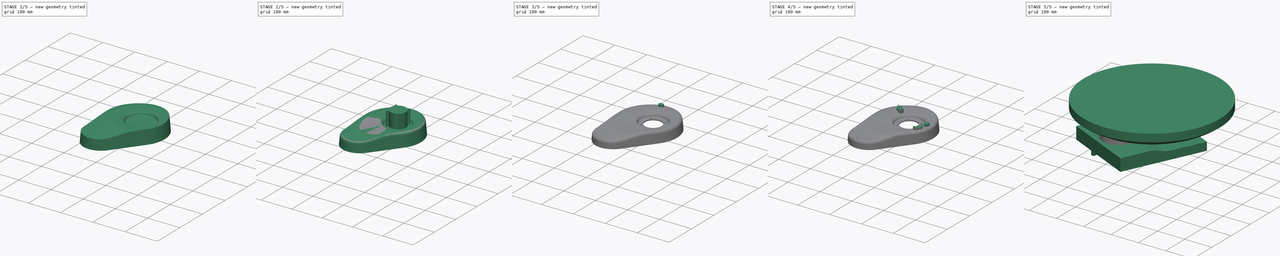
[diagram: build sequence overview — one tinted view per stage of 5, left to right]
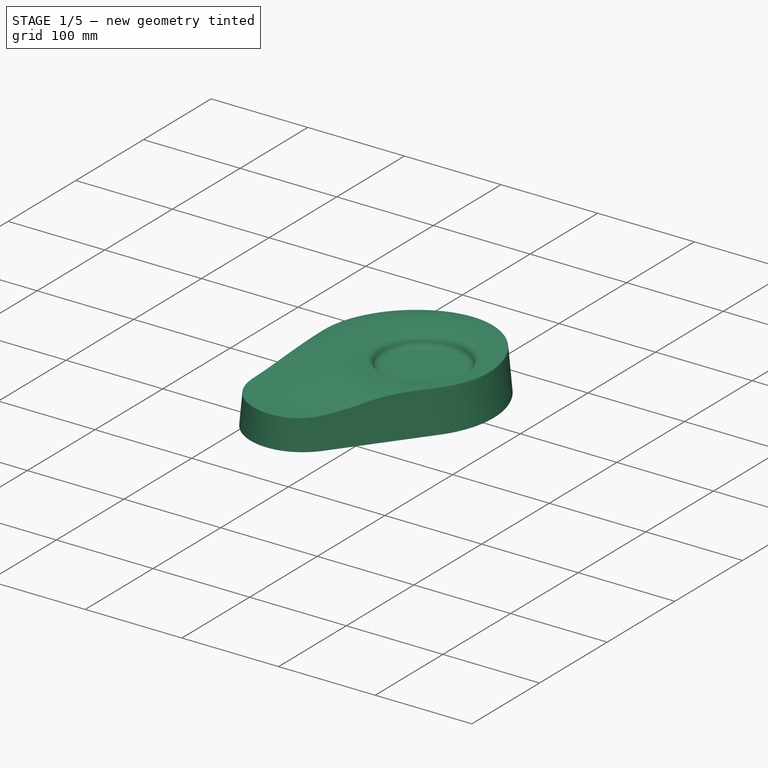
[diagram: stage 1 of 5 — iso view after this stage's code; geometry added in this stage tinted green]
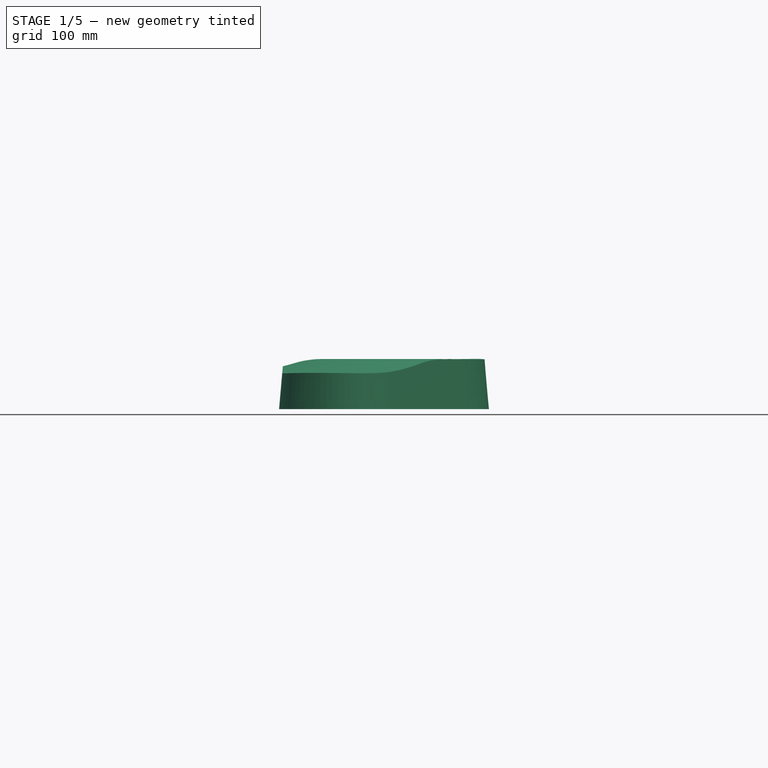
[diagram: stage 1 of 5 — front view after this stage's code; geometry added in this stage tinted green]
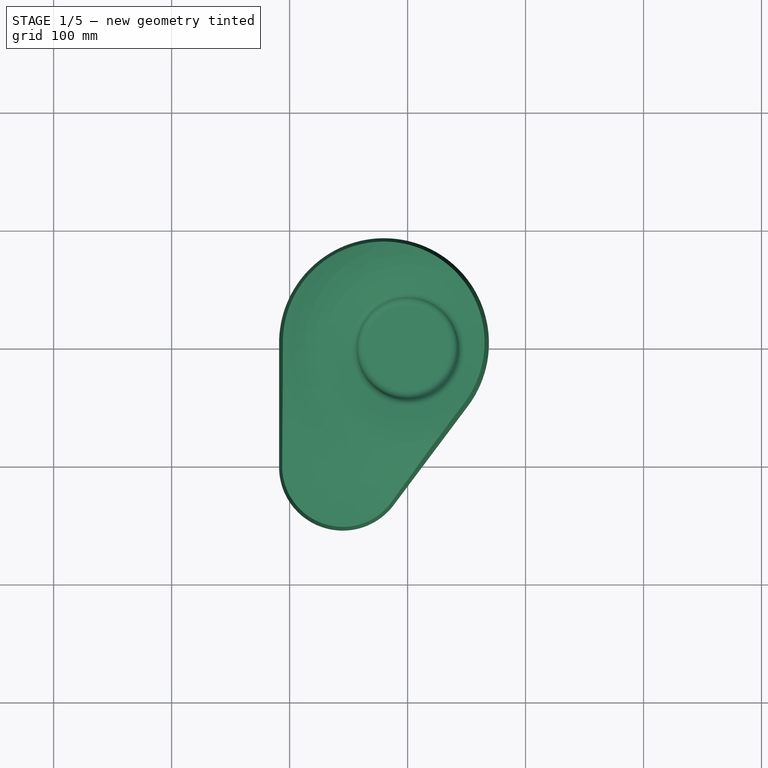
[diagram: stage 1 of 5 — top view after this stage's code; geometry added in this stage tinted green]
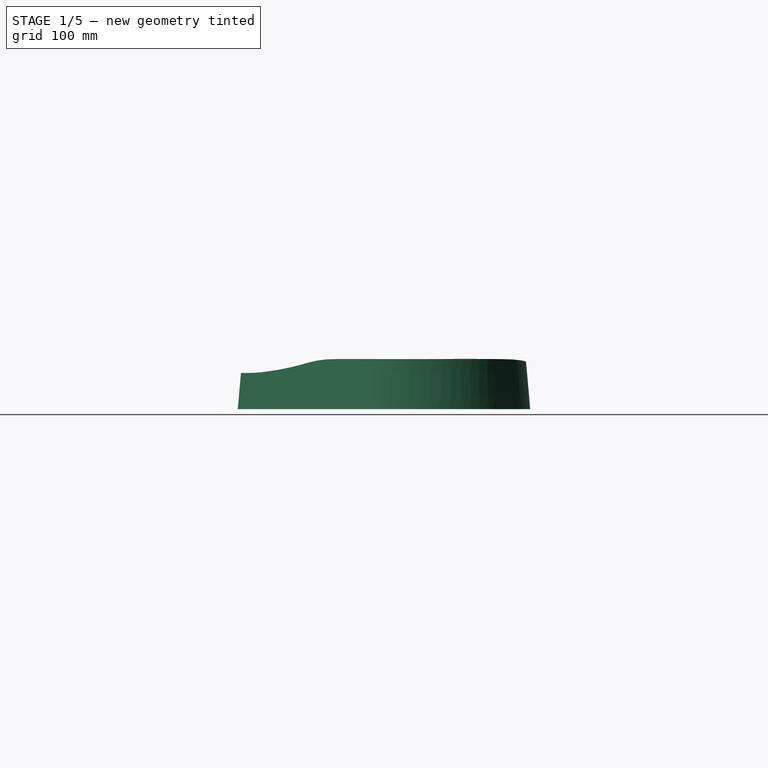
[diagram: stage 1 of 5 — right view after this stage's code; geometry added in this stage tinted green]
FCSTD DOCUMENT  (FreeCAD 0.17R6700 (Git))
Label: collar_top
License: All rights reserved
LicenseURL: http://en.wikipedia.org/wiki/All_rights_reserved
objects: Part::FeaturePython×12, Sketcher::SketchObject×8, Part::Feature×7, Part::MultiFuse×5, Part::Cut×5, PartDesign::Revolution×4, PartDesign::Pad×3, Part::Fillet×2, Part::Cylinder×1, Part::Box×1, PartDesign::Pocket×1, PartDesign::Draft×1, PartDesign::Fillet×1, Part::Thickness×1
note: 60 computed .brp shape members not serialized (recipe doc carries the construction recipe); baked Part::Feature solids carry a one-line shape summary decoded from their .brp

FEATURE [Sketcher::SketchObject] Sketch
  Placement = pos=(0,0,-30) rot=(0,0,1;0rad)
  sketch-geometry (4):
    g0: ArcOfCircle CenterX=-20 CenterY=5 CenterZ=0 NormalX=0 NormalY=0 NormalZ=1 Radius=85 StartAngle=5.63969 EndAngle=9.42478
    g1: LineSegment StartX=-105 StartY=5.00009 StartZ=0 EndX=-105 EndY=-100 EndZ=0
    g2: LineSegment StartX=48.0001 StartY=-45.9999 StartZ=0 EndX=-15 EndY=-130 EndZ=0
    g3: ArcOfCircle CenterX=-55 CenterY=-100 CenterZ=0 NormalX=0 NormalY=0 NormalZ=1 Radius=50 StartAngle=3.14159 EndAngle=5.63968
  constraints (14):
    c: Tangent(g1,g0)
    c: Tangent(g2,g0)
    c: Coincident(g0,g1)
    c: Coincident(g0,g2)
    c: DistanceX(g0,g-1) = 20
    c: Coincident(g3,g2)
    c: Coincident(g1,g3)
    c: Tangent(g3,g1)
    c: Tangent(g2,g3)
    c: Radius(g3) = 50
    c: Radius(g0) = 85
    c: DistanceY(g3,g-1) = 100
    c: Vertical(g1)
    c: DistanceY(g-1,g0) = 5
FEATURE [PartDesign::Pad] Pad
  Length = 45
  Length2 = 100
  Placement = pos=(0,0,-30) rot=(0,0,1;0rad)
  Sketch = -> Sketch
  Type = 0
FEATURE [PartDesign::Draft] Draft
  Angle = 5
  Base = -> Pad [Face2,Face1,Face3,Face4]
  NeutralPlane = -> Pad [Face6]
  Placement = pos=(0,0,-30) rot=(0,0,1;0rad)
  Reversed = true
FEATURE [Sketcher::SketchObject] Sketch018
  Placement = pos=(0,0,0) rot=(1,0,0;1.5708rad)
  sketch-geometry (4):
    g0: ArcOfCircle CenterX=-153.904 CenterY=200.406 CenterZ=0 NormalX=0 NormalY=0 NormalZ=1 Radius=200 StartAngle=4.11939 EndAngle=5.51797
    g1: LineSegment StartX=-9.65777 StartY=61.8673 StartZ=0 EndX=-9.65777 EndY=83.936 EndZ=0
    g2: LineSegment StartX=-9.65777 StartY=83.936 StartZ=0 EndX=-265.674 EndY=83.936 EndZ=0
    g3: LineSegment StartX=-265.674 StartY=83.936 StartZ=0 EndX=-265.674 EndY=34.5527 EndZ=0
  constraints (8):
    c: Radius(g0) = 200
    c: Vertical(g1)
    c: Coincident(g2,g1)
    c: Horizontal(g2)
    c: Coincident(g3,g2)
    c: Coincident(g3,g0)
    c: Vertical(g3)
    c: Coincident(g1,g0)
FEATURE [PartDesign::Revolution] Revolution
  Angle = 360
  Axis = (0,0,1)
  Base = (0,0,0)
  Placement = pos=(0,0,0) rot=(1,0,0;1.5708rad)
  ReferenceAxis = -> Sketch018 [V_Axis]
  Sketch = -> Sketch018
FEATURE [Part::Cut] Cut
  Base = -> Draft
  Tool = -> Revolution
FEATURE [Sketcher::SketchObject] Sketch019
  Placement = pos=(0,0,0) rot=(1,0,0;1.5708rad)
  sketch-geometry (7):
    g0: LineSegment StartX=0 StartY=0 StartZ=0 EndX=-36 EndY=0 EndZ=0
    g1: ArcOfCircle CenterX=-36 CenterY=7 CenterZ=0 NormalX=0 NormalY=0 NormalZ=1 Radius=7 StartAngle=3.427 EndAngle=4.71239
    g2: ArcOfCircle CenterX=-49.4337 CenterY=3.05834 CenterZ=0 NormalX=0 NormalY=0 NormalZ=1 Radius=7 StartAngle=0.285406 EndAngle=1.4416
    g3: LineSegment StartX=0 StartY=0 StartZ=0 EndX=0 EndY=83.8652 EndZ=0
    g4: LineSegment StartX=0 StartY=83.8652 StartZ=0 EndX=-96.3041 EndY=83.8652 EndZ=0
    g5: LineSegment StartX=-96.3041 StartY=16.2066 StartZ=0 EndX=-96.3041 EndY=83.8652 EndZ=0
    g6: LineSegment StartX=-48.5318 StartY=10 StartZ=0 EndX=-96.3041 EndY=16.2066 EndZ=0
  constraints (17):
    c: Coincident(g-1,g0)
    c: Horizontal(g0)
    c: Tangent(g0,g1) = 1.5708
    c: Tangent(g1,g2) = 1.5708
    c: DistanceX(g0,g-1) = 36
    c: Equal(g2,g1)
    c: Radius(g2) = 7
    c: DistanceY(g-1,g2) = 10
    c: Coincident(g3,g-1)
    c: Vertical(g3)
    c: Coincident(g4,g3)
    c: Horizontal(g4)
    c: Vertical(g5)
    c: Coincident(g4,g5)
    c: Coincident(g6,g2)
    c: Tangent(g2,g6)
    c: Coincident(g5,g6)
FEATURE [PartDesign::Revolution] Revolution004
  Angle = 360
  Axis = (0,0,1)
  Base = (0,0,0)
  Placement = pos=(0,0,0) rot=(1,0,0;1.5708rad)
  ReferenceAxis = -> Sketch019 [V_Axis]
  Sketch = -> Sketch019
FEATURE [Part::Cut] Cut001
  Base = -> Cut
  Tool = -> Revolution004
FEATURE [PartDesign::Fillet] Fillet
  Base = -> Cut001 [Edge16,Edge13]
  Radius = 80
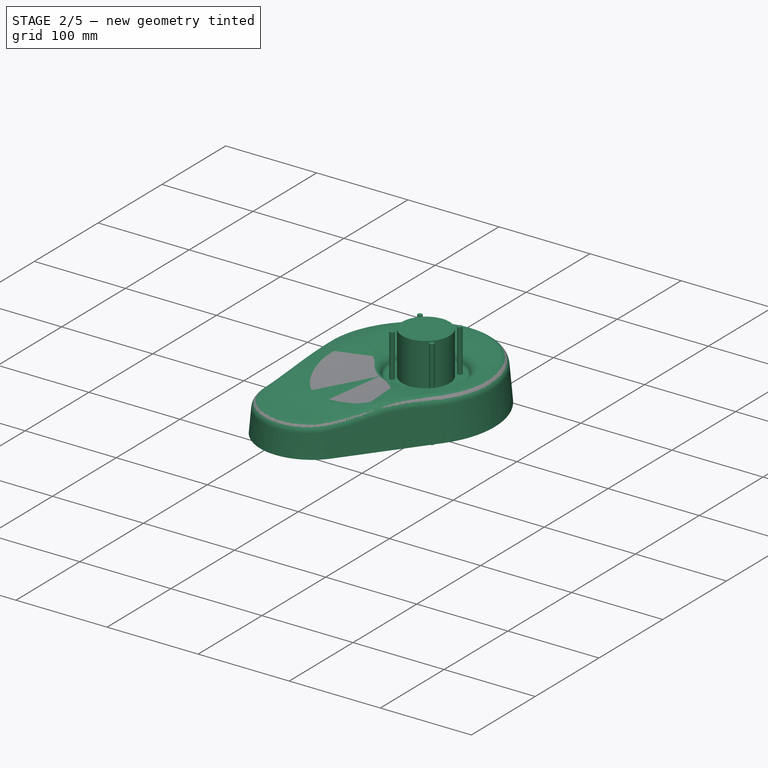
[diagram: stage 2 of 5 — iso view after this stage's code; geometry added in this stage tinted green]
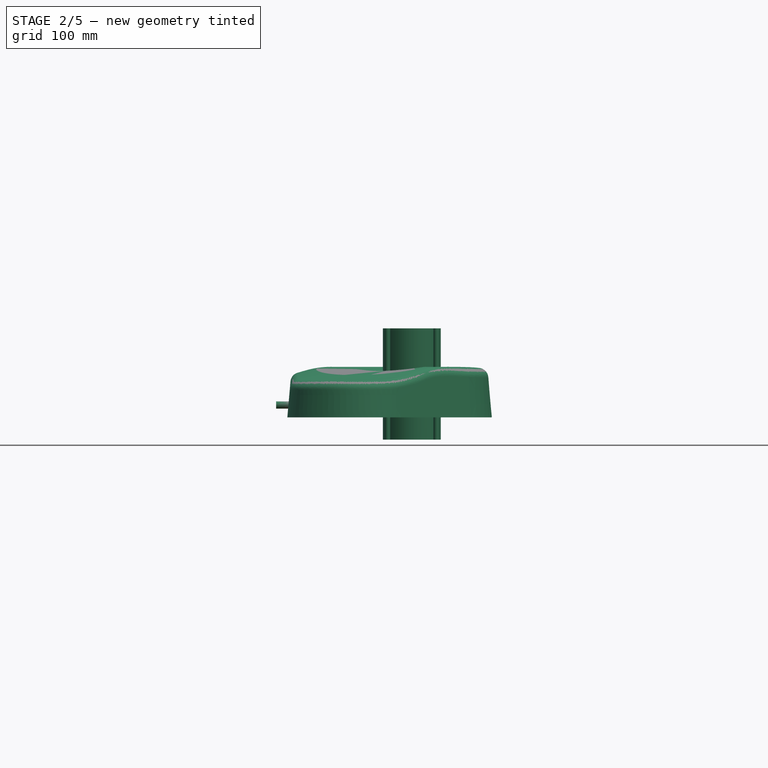
[diagram: stage 2 of 5 — front view after this stage's code; geometry added in this stage tinted green]
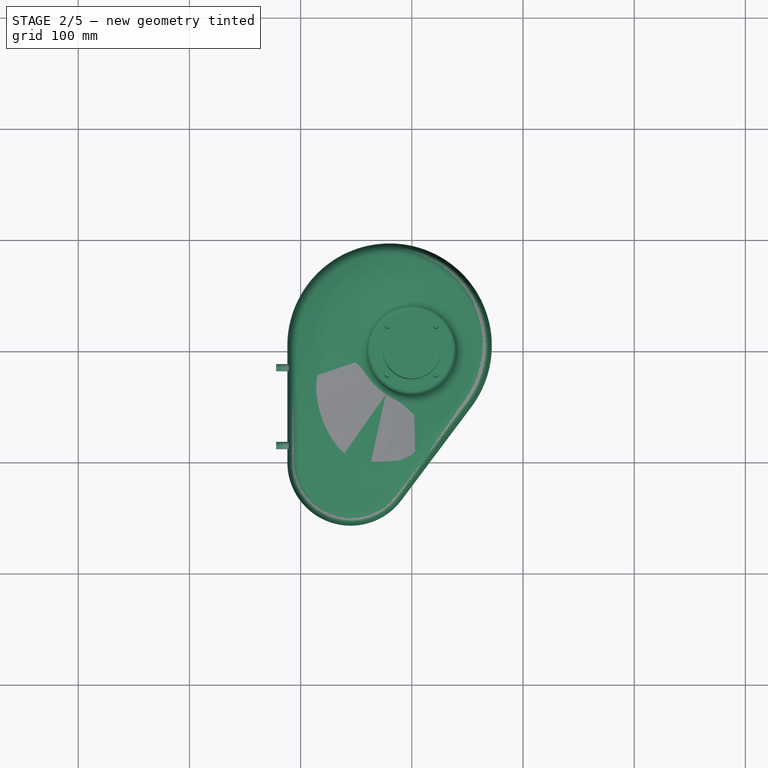
[diagram: stage 2 of 5 — top view after this stage's code; geometry added in this stage tinted green]
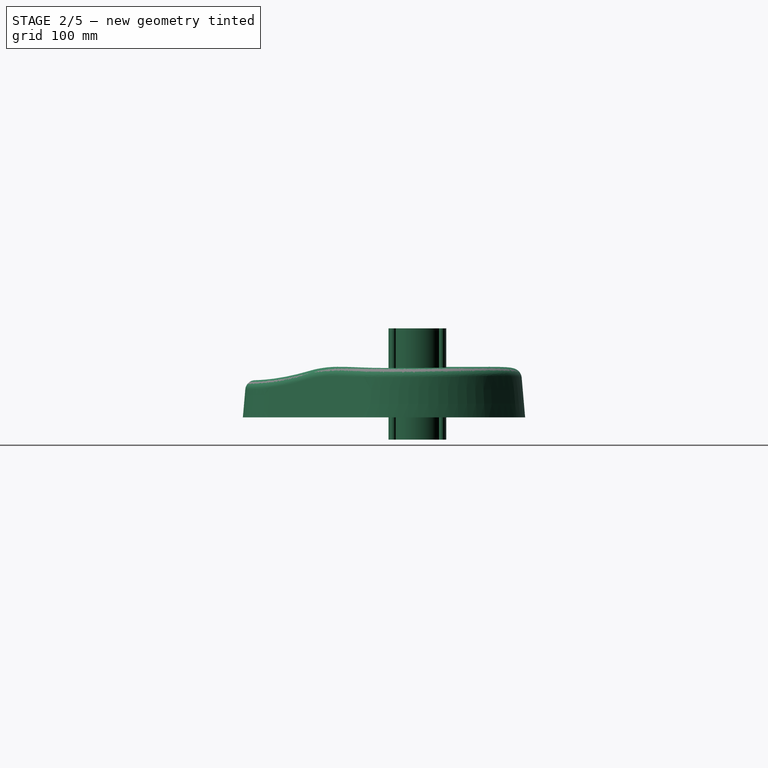
[diagram: stage 2 of 5 — right view after this stage's code; geometry added in this stage tinted green]
FEATURE [Sketcher::SketchObject] Sketch013
  Placement = pos=(-52,-100,-1) rot=(1,0,0;1.5708rad)
  sketch-geometry (6):
    g0: ArcOfCircle CenterX=0 CenterY=306 CenterZ=0 NormalX=0 NormalY=0 NormalZ=1 Radius=300 StartAngle=4.37255 EndAngle=5.05223
    g1: LineSegment StartX=-100 StartY=23.1573 StartZ=0 EndX=-100 EndY=53.1573 EndZ=0
    g2: LineSegment StartX=-100 StartY=53.1573 StartZ=0 EndX=100 EndY=53.1573 EndZ=0
    g3: LineSegment StartX=100 StartY=53.1573 StartZ=0 EndX=100 EndY=23.1573 EndZ=0
    g4: LineSegment [constr] StartX=-100 StartY=6 StartZ=0 EndX=100 EndY=6 EndZ=0
    g5: LineSegment [constr] StartX=52.6218 StartY=750 StartZ=0 EndX=-140.263 EndY=750 EndZ=0
  constraints (19):
    c: Radius(g0) = 300
    c: Coincident(g0,g1)
    c: Vertical(g1)
    c: Coincident(g1,g2)
    c: Horizontal(g2)
    c: Coincident(g2,g3)
    c: Vertical(g3)
    c: Coincident(g0,g3)
    c: Equal(g3,g1)
    c: DistanceY(g3,g3) = 30
    c: DistanceX(g2,g2) = 200
    c: Horizontal(g4)
    c: Equal(g4,g2)
    c: Tangent(g4,g0)
    c: DistanceX(g-1,g4) = 100
    c: DistanceY(g-1,g4) = 6
    c: Horizontal(g5)
    c: DistanceY(g-1,g5) = 750
    c: Symmetric(g2,g1,g-2)
FEATURE [PartDesign::Revolution] Revolution003
  Angle = 360
  Axis = (-192.885,0,0)
  Base = (0.621761,-100,749)
  Placement = pos=(-52,-100,-1) rot=(1,0,0;1.5708rad)
  ReferenceAxis = -> Sketch013 [Axis1]
  Sketch = -> Sketch013
FEATURE [Sketcher::SketchObject] Sketch014
  Placement = pos=(0,0,-50) rot=(0,0,1;0rad)
  sketch-geometry (5):
    g0: Circle CenterX=0 CenterY=0 CenterZ=0 NormalX=0 NormalY=0 NormalZ=1 Radius=26
    g1: Circle CenterX=21.92 CenterY=-21.92 CenterZ=0 NormalX=0 NormalY=0 NormalZ=1 Radius=2.5
    g2: Circle CenterX=21.92 CenterY=21.92 CenterZ=0 NormalX=0 NormalY=0 NormalZ=1 Radius=2.5
    g3: Circle CenterX=-21.92 CenterY=21.92 CenterZ=0 NormalX=0 NormalY=0 NormalZ=1 Radius=2.5
    g4: Circle CenterX=-21.92 CenterY=-21.92 CenterZ=0 NormalX=0 NormalY=0 NormalZ=1 Radius=2.5
  constraints (11):
    c: Coincident(g0,g-1)
    c: Equal(g3,g4)
    c: Equal(g4,g1)
    c: Equal(g1,g2)
    c: Symmetric(g2,g1,g-1)
    c: Symmetric(g1,g4,g-2)
    c: Symmetric(g4,g3,g-1)
    c: DistanceX(g3,g-1) = 21.92
    c: DistanceY(g-1,g3) = 21.92
    c: Radius(g3) = 2.5
    c: Radius(g0) = 26
FEATURE [PartDesign::Pad] Pad002  label="joystick_pocket001"
  Length = 100
  Length2 = 100
  Placement = pos=(0,0,-50) rot=(0,0,1;0rad)
  Sketch = -> Sketch014
  Type = 0
FEATURE [Part::Cylinder] Cylinder
  Angle = 360
  Height = 20
  Placement = pos=(-122,-15,-18.9) rot=(0,1,0;1.5708rad)
  Radius = 3.25
FEATURE [Part::FeaturePython] Clone  label="Clone of Cylinder"  # Draft clone (typed FeaturePython)
  Objects = -> [Cylinder]
  Placement = pos=(-122,-85,-18.9) rot=(0,1,0;1.5708rad)
  Scale = (1,1,1)
FEATURE [Part::MultiFuse] Fusion003  label="attach_holes"
  Shapes = -> [Clone,Cylinder]
FEATURE [Part::Cut] Cut002
  Base = -> Fillet
  Tool = -> Revolution003
FEATURE [Part::Fillet] Fillet002
  Base = -> Cut002
  Edges = 11 edges r=6: [Edge1,Edge2,Edge4,Edge6,Edge8,Edge10,Edge17,Edge25,Edge26,Edge34,Edge35]
FEATURE [Part::Thickness] Thickness
  Faces = -> Fillet002 [Face4]
  Intersection = false
  Join = 0
  Mode = 0
  SelfIntersection = false
  Value = 3
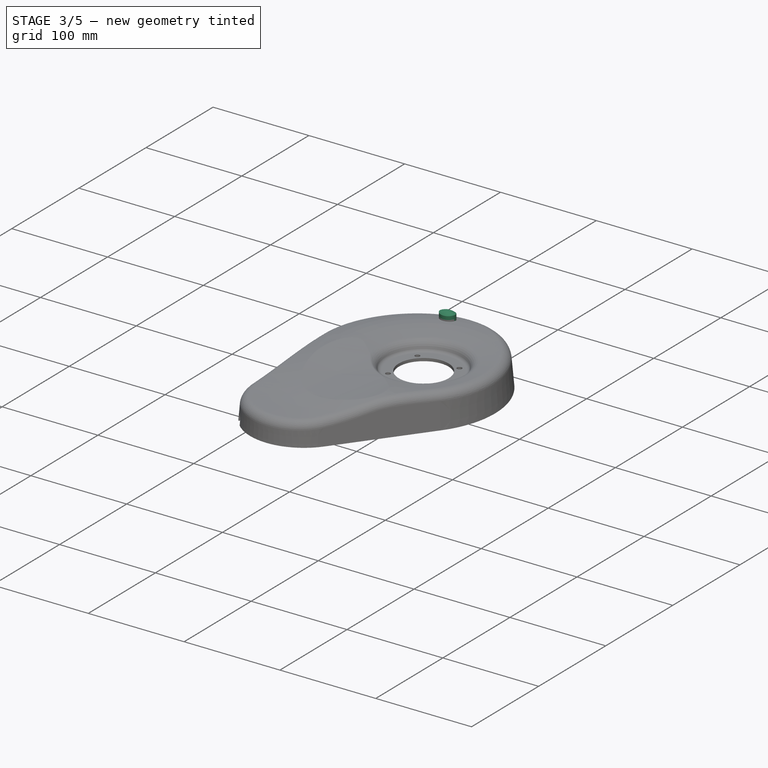
[diagram: stage 3 of 5 — iso view after this stage's code; geometry added in this stage tinted green]
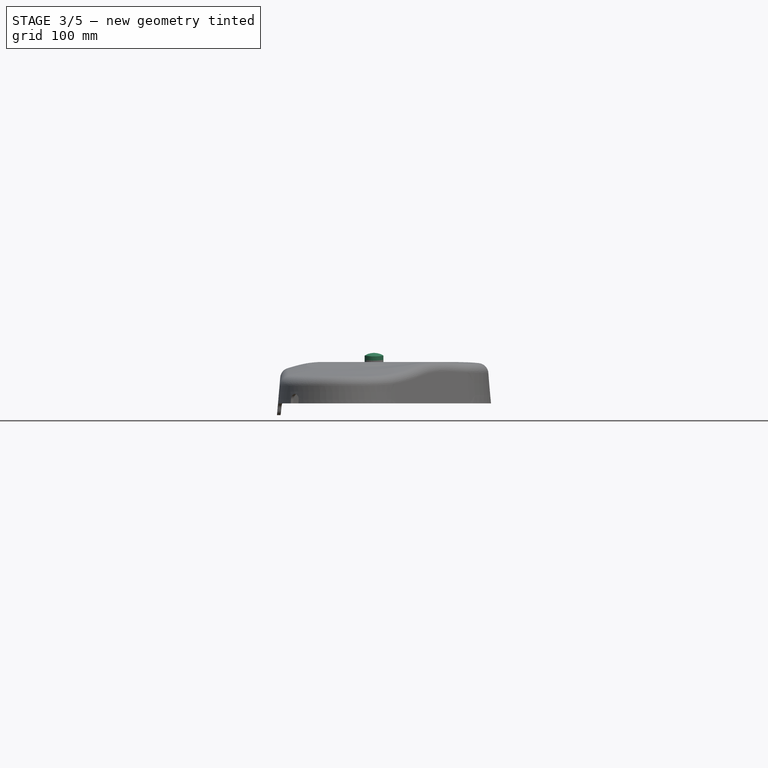
[diagram: stage 3 of 5 — front view after this stage's code; geometry added in this stage tinted green]
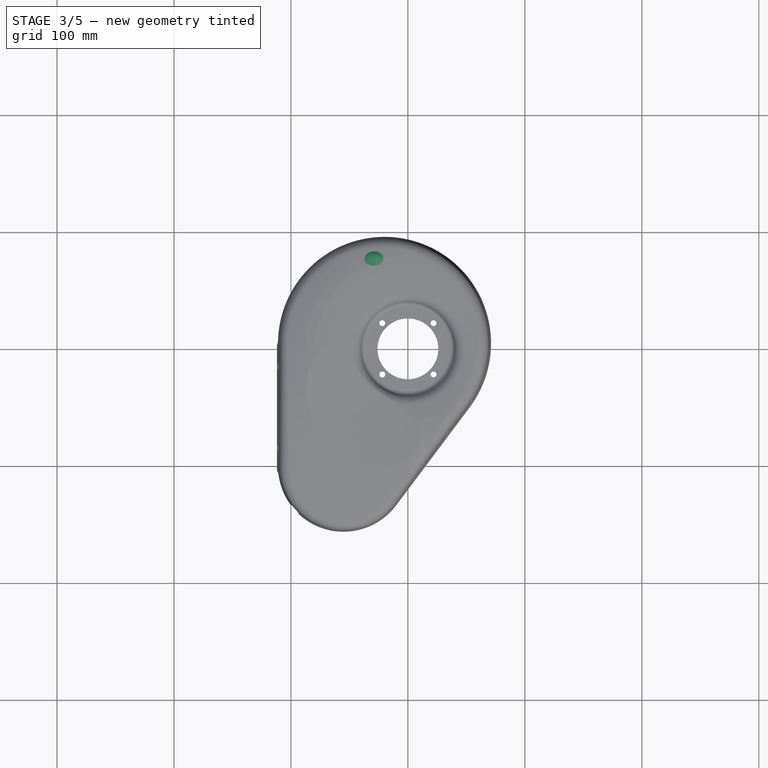
[diagram: stage 3 of 5 — top view after this stage's code; geometry added in this stage tinted green]
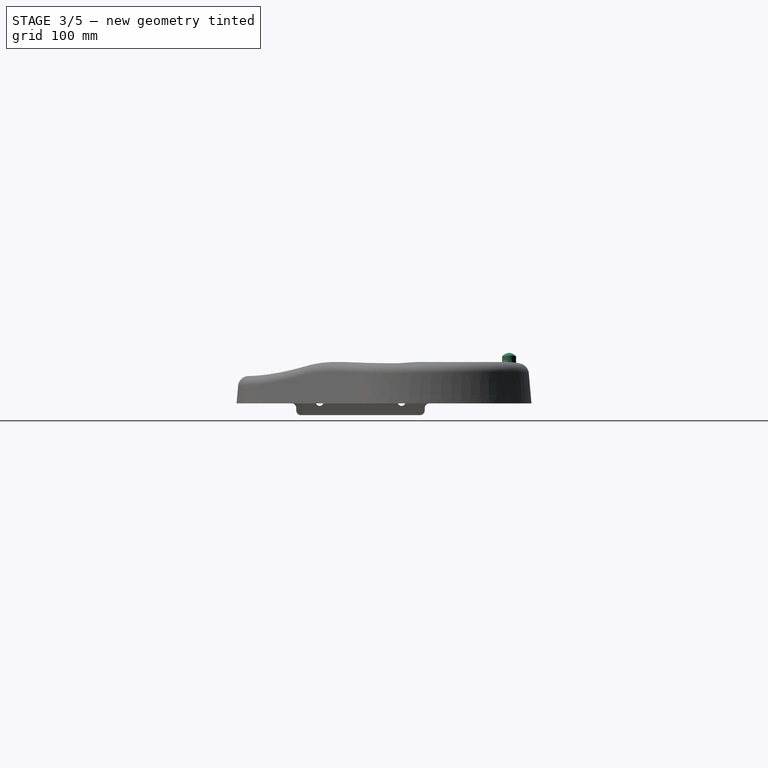
[diagram: stage 3 of 5 — right view after this stage's code; geometry added in this stage tinted green]
FEATURE [Part::FeaturePython] Clone011  label="b2_hole"  # Draft clone (typed FeaturePython)
  Objects = -> [Part__Feature007]
  Placement = pos=(-29,77,8) rot=(0,0,1;0.05236rad)
  Scale = (1,1,1)
FEATURE [Part::Box] Box  label="Cube"
  Height = 30
  Length = 400
  Placement = pos=(-200,-200,-50) rot=(0,0,1;0rad)
  Width = 400
FEATURE [Sketcher::SketchObject] Sketch016
  ExternalGeometry = -> [Box]
  Placement = pos=(-200,-200,-50) rot=(0.57735,-0.57735,-0.57735;2.0944rad)
  Support = -> Box [Face1]
  sketch-geometry (5):
    g0: LineSegment StartX=-204.8 StartY=20 StartZ=0 EndX=-95 EndY=20 EndZ=0
    g1: LineSegment StartX=-204.8 StartY=20 StartZ=0 EndX=-204.8 EndY=30 EndZ=0
    g2: LineSegment StartX=-95 StartY=20 StartZ=0 EndX=-95 EndY=30 EndZ=0
    g3: LineSegment StartX=-95 StartY=30 StartZ=0 EndX=-204.8 EndY=30 EndZ=0
    g4: LineSegment [constr] StartX=-135 StartY=30 StartZ=0 EndX=-135 EndY=80 EndZ=0
  constraints (16):
    c: Horizontal(g0)
    c: Coincident(g1,g0)
    c: PointOnObject(g1,g-3)
    c: Vertical(g1)
    c: Coincident(g2,g0)
    c: PointOnObject(g2,g-3)
    c: Vertical(g2)
    c: Coincident(g3,g2)
    c: Coincident(g3,g1)
    c: DistanceY(g1,g1) = 10
    c: PointOnObject(g4,g-3)
    c: Vertical(g4)
    c: DistanceY(g4,g4) = 50
    c: DistanceX(g4,g-1) = 135
    c: DistanceX(g4,g2) = 40
    c: DistanceX(g1,g4) = 69.8
FEATURE [PartDesign::Pocket] Pocket
  Length = 130
  Placement = pos=(-200,-200,-50) rot=(0,0,1;0rad)
  Sketch = -> Sketch016
  Type = 0
FEATURE [Part::Fillet] Fillet001
  Base = -> Pocket
  Edges = 4 edges r=4: [Edge9,Edge11,Edge15,Edge17]
FEATURE [Part::Feature] Pad005001  label="wire_hole001"
  Placement = pos=(-60,-100,-20) rot=(0,0,-1;0.785398rad)
  shape: bbox 67.18 x 67.18 x 30 mm, 6 faces (baked)
FEATURE [Part::MultiFuse] Fusion005
  Shapes = -> [Fusion003,Pad002,Pad005001]
FEATURE [Part::MultiFuse] Fusion007  label="reiät"
  Shapes = -> [Fillet001,Fusion005]
FEATURE [Part::Cut] Cut003
  Base = -> Thickness
  Tool = -> Fusion007
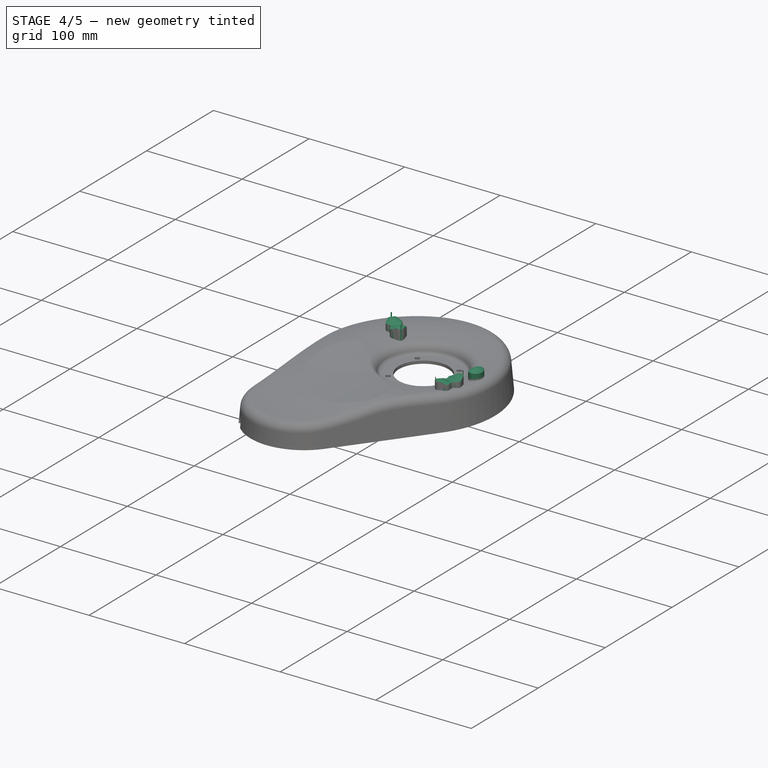
[diagram: stage 4 of 5 — iso view after this stage's code; geometry added in this stage tinted green]
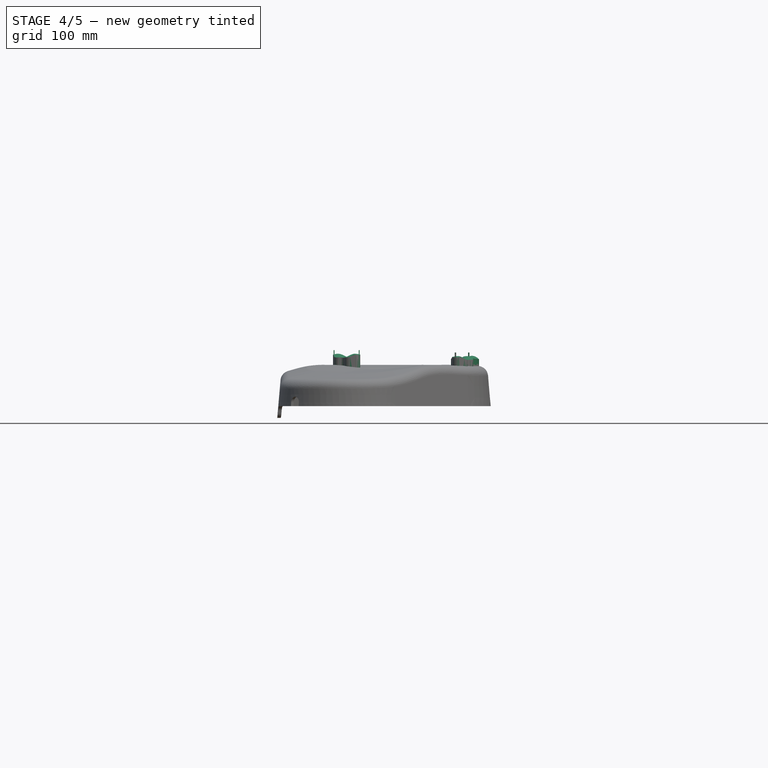
[diagram: stage 4 of 5 — front view after this stage's code; geometry added in this stage tinted green]
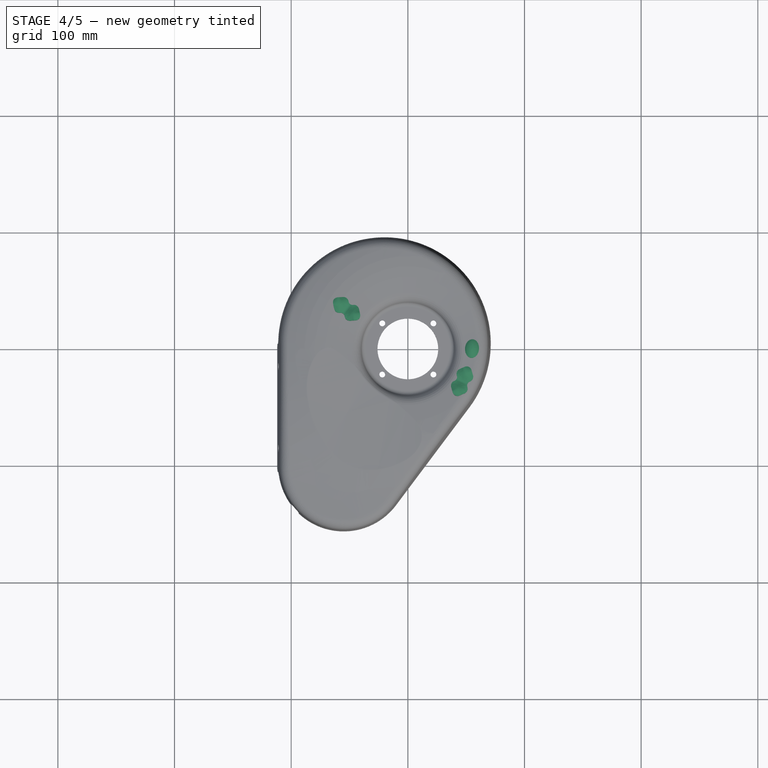
[diagram: stage 4 of 5 — top view after this stage's code; geometry added in this stage tinted green]
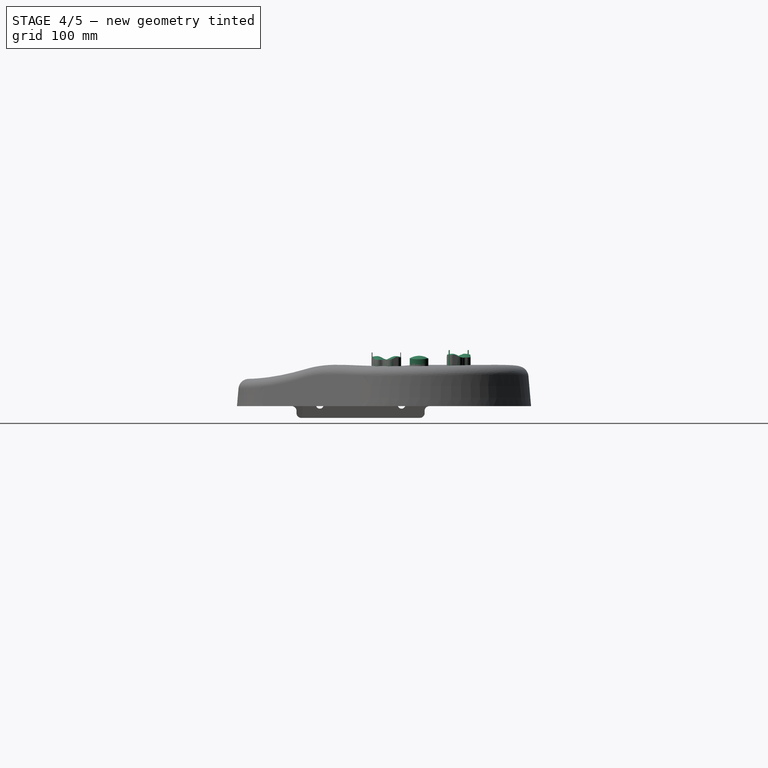
[diagram: stage 4 of 5 — right view after this stage's code; geometry added in this stage tinted green]
FEATURE [Part::Feature] Part__Feature007  label="b1_hole"
  Placement = pos=(-9,78,8) rot=(0,0,-1;0.191986rad)
  shape: bbox 35.08 x 29.36 x 31.2 mm, 4 faces (baked)
FEATURE [Part::Feature] Part__Feature008  label="sw2_hole"
  Placement = pos=(4.8,56.8,7) rot=(0,0,-1;0.087266rad)
  shape: bbox 18.83 x 34.4 x 36.84 mm, 30 faces (baked)
FEATURE [Part::FeaturePython] Clone008  label="sw3_hole"  # Draft clone (typed FeaturePython)
  Objects = -> [Part__Feature008]
  Placement = pos=(-17.3,55.7,8) rot=(0,0,1;0.296706rad)
  Scale = (1,1,1)
FEATURE [Part::FeaturePython] Clone009  label="sw4_hole"  # Draft clone (typed FeaturePython)
  Objects = -> [Clone008]
  Placement = pos=(-38,48.5,11) rot=(0,0,1;0.628319rad)
  Scale = (1,1,1)
FEATURE [Part::FeaturePython] Clone010  label="sw1_hole"  # Draft clone (typed FeaturePython)
  Objects = -> [Clone009]
  Placement = pos=(46.5,-28,7) rot=(0,0,-1;0.436332rad)
  Scale = (1,1,1)
FEATURE [Part::FeaturePython] Clone012  label="b3_hole"  # Draft clone (typed FeaturePython)
  Objects = -> [Clone011]
  Placement = pos=(-48.7,72,8) rot=(0,0,1;0.349066rad)
  Scale = (1,1,1)
FEATURE [Part::FeaturePython] Clone013  label="b4_hole"  # Draft clone (typed FeaturePython)
  Objects = -> [Clone012]
  Placement = pos=(-67,62.5,8) rot=(0,0,1;0.610865rad)
  Scale = (1,1,1)
FEATURE [Part::FeaturePython] Clone014  label="b5_hole"  # Draft clone (typed FeaturePython)
  Objects = -> [Clone013]
  Placement = pos=(-81.5,47,8) rot=(0,0,1;0.942478rad)
  Scale = (1,1,1)
FEATURE [Part::FeaturePython] Clone015  label="sw5_hole"  # Draft clone (typed FeaturePython)
  Objects = -> [Clone009]
  Placement = pos=(-52.5,34,9) rot=(0,0,1;0.925025rad)
  Scale = (1,1,1)
FEATURE [Part::FeaturePython] Clone016  label="b6_hole"  # Draft clone (typed FeaturePython)
  Objects = -> [Clone014]
  Placement = pos=(55,0,8) rot=(0,0,1;1.48353rad)
  Scale = (1,1,1)
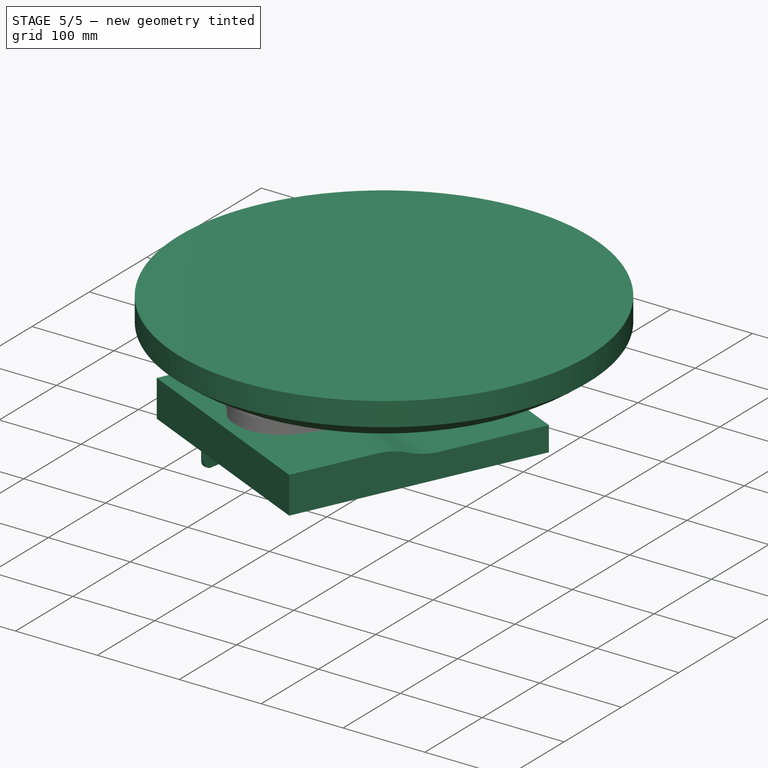
[diagram: stage 5 of 5 — iso view after this stage's code; geometry added in this stage tinted green]
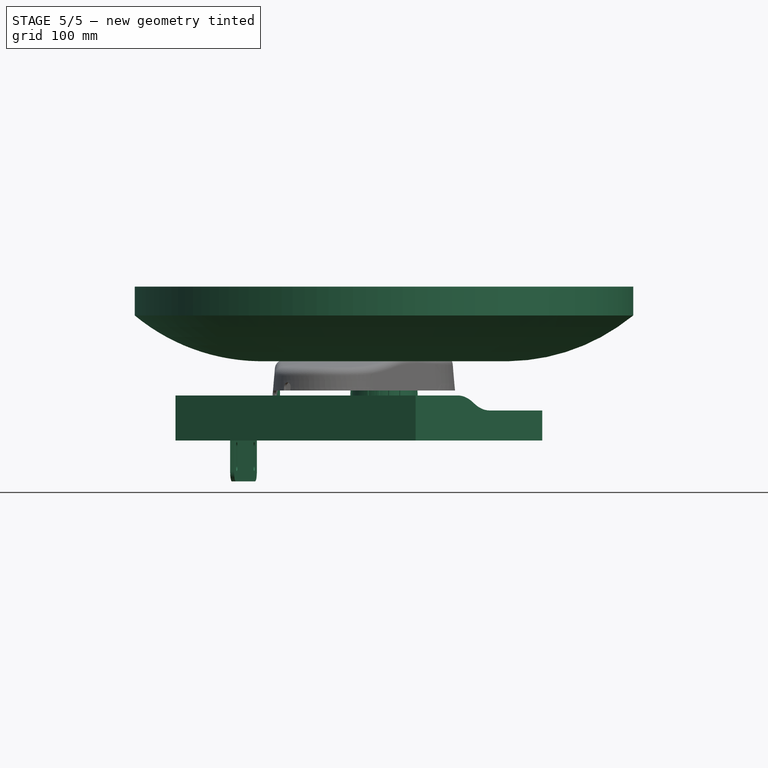
[diagram: stage 5 of 5 — front view after this stage's code; geometry added in this stage tinted green]
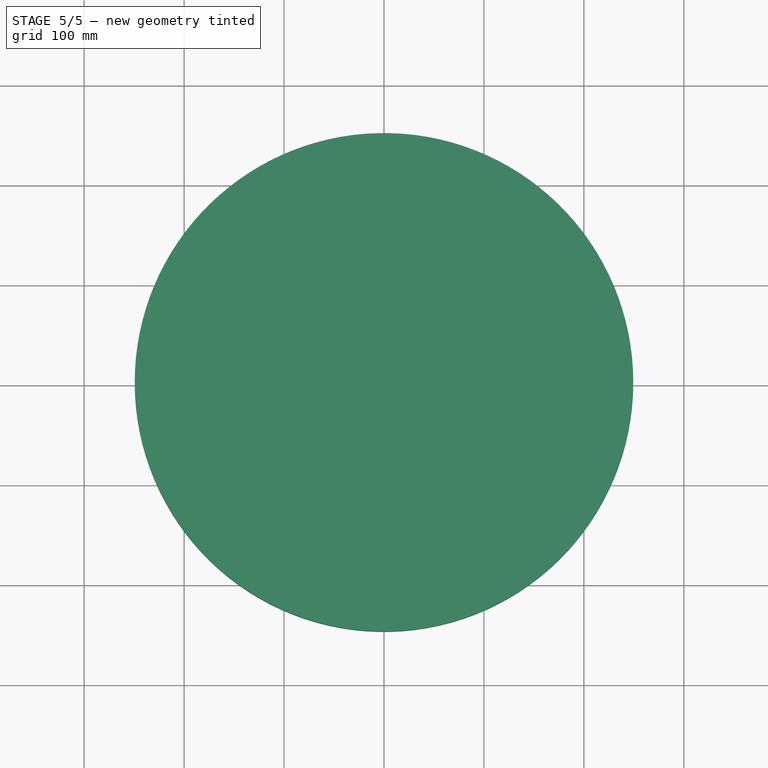
[diagram: stage 5 of 5 — top view after this stage's code; geometry added in this stage tinted green]
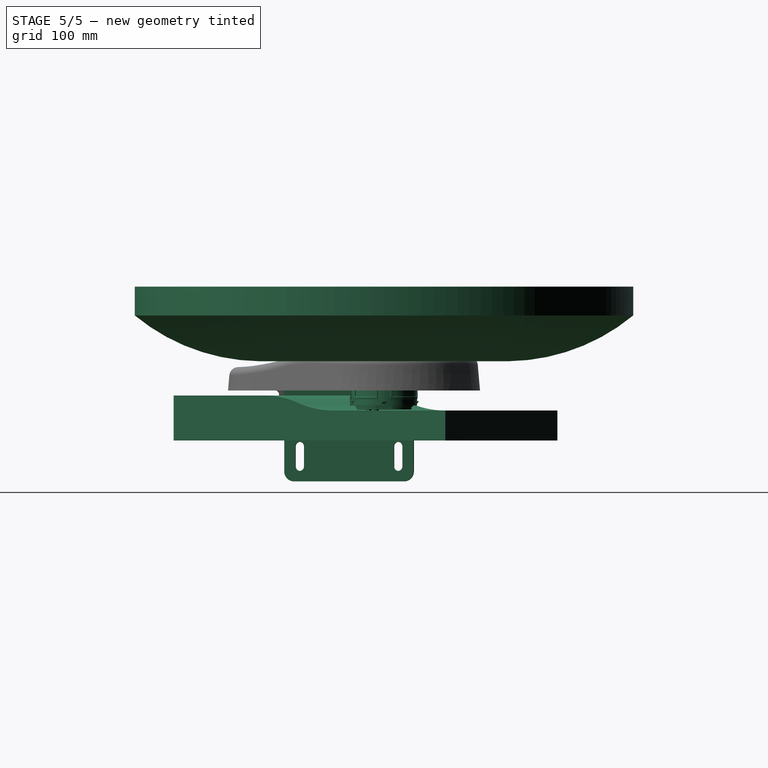
[diagram: stage 5 of 5 — right view after this stage's code; geometry added in this stage tinted green]
FEATURE [Part::Feature] Part__Feature001  label="SOLID"
  shape: bbox 74.63 x 129.8 x 74.63 mm, 2403 faces (baked)
FEATURE [Part::Feature] Part__Feature002  label="SOLID001"
  shape: bbox 11.11 x 64.77 x 11.11 mm, 36 faces (baked)
FEATURE [Part::Feature] Part__Feature003  label="SOLID002"
  shape: bbox 57.66 x 25.13 x 17.66 mm, 562 faces (baked)
FEATURE [Part::Feature] Part__Feature004  label="SOLID003"
  shape: bbox 72.14 x 51.34 x 23.77 mm, 195 faces (baked)
FEATURE [Part::MultiFuse] Fusion  label="joy"
  Placement = pos=(0,0,-16.1) rot=(0.57735,-0.57735,-0.57735;2.0944rad)
  Shapes = -> [Part__Feature001,Part__Feature002,Part__Feature003,Part__Feature004]
FEATURE [Sketcher::SketchObject] Sketch012
  Placement = pos=(0,0,0) rot=(1,0,0;1.5708rad)
  sketch-geometry (8):
    g0: LineSegment StartX=0 StartY=0 StartZ=0 EndX=-36 EndY=0 EndZ=0
    g1: ArcOfCircle CenterX=-36 CenterY=7 CenterZ=0 NormalX=0 NormalY=0 NormalZ=1 Radius=7 StartAngle=3.42391 EndAngle=4.71239
    g2: ArcOfCircle CenterX=-49.4458 CenterY=3.09979 CenterZ=0 NormalX=0 NormalY=0 NormalZ=1 Radius=7 StartAngle=0.282322 EndAngle=1.40174
    g3: ArcOfCircle CenterX=-75.188 CenterY=-147.719 CenterZ=0 NormalX=0 NormalY=0 NormalZ=1 Radius=160 StartAngle=1.40174 EndAngle=1.70124
    g4: ArcOfCircle CenterX=-122.015 CenterY=209.222 CenterZ=0 NormalX=0 NormalY=0 NormalZ=1 Radius=200 StartAngle=4.02177 EndAngle=4.84283
    g5: LineSegment StartX=0 StartY=0 StartZ=0 EndX=0 EndY=83.936 EndZ=0
    g6: LineSegment StartX=0 StartY=83.936 StartZ=0 EndX=-249.418 EndY=83.936 EndZ=0
    g7: LineSegment StartX=-249.418 StartY=83.936 StartZ=0 EndX=-249.418 EndY=55.0521 EndZ=0
  constraints (21):
    c: Coincident(g-1,g0)
    c: Horizontal(g0)
    c: Tangent(g0,g1) = 1.5708
    c: Tangent(g1,g2) = 1.5708
    c: Tangent(g2,g3) = -1.5708
    c: DistanceX(g0,g-1) = 36
    c: Equal(g2,g1)
    c: DistanceX(g3,g0) = 60
    c: Radius(g2) = 7
    c: Coincident(g4,g3)
    c: DistanceY(g-1,g2) = 10
    c: Tangent(g4,g3)
    c: Radius(g4) = 200
    c: Radius(g3) = 160
    c: Coincident(g5,g-1)
    c: Vertical(g5)
    c: Coincident(g6,g5)
    c: Horizontal(g6)
    c: Coincident(g7,g6)
    c: Coincident(g7,g4)
    c: Vertical(g7)
FEATURE [PartDesign::Revolution] Revolution002
  Angle = 360
  Axis = (0,0,1)
  Base = (0,0,0)
  Placement = pos=(0,0,0) rot=(1,0,0;1.5708rad)
  ReferenceAxis = -> Sketch012 [V_Axis]
  Sketch = -> Sketch012
FEATURE [Sketcher::SketchObject] Sketch015
  Placement = pos=(-23,-14,0) rot=(0.742942,0.473306,0.473306;1.86366rad)
  sketch-geometry (7):
    g0: LineSegment StartX=-155 StartY=-25 StartZ=0 EndX=-155 EndY=-70 EndZ=0
    g1: LineSegment StartX=-155 StartY=-70 StartZ=0 EndX=145 EndY=-70 EndZ=0
    g2: LineSegment StartX=145 StartY=-70 StartZ=0 EndX=145 EndY=-40 EndZ=0
    g3: LineSegment StartX=145 StartY=-40 StartZ=0 EndX=20 EndY=-40 EndZ=0
    g4: ArcOfCircle CenterX=20 CenterY=57.5001 CenterZ=0 NormalX=0 NormalY=0 NormalZ=1 Radius=97.5001 StartAngle=4.3176 EndAngle=4.71239
    g5: ArcOfCircle CenterX=-55 CenterY=-122.5 CenterZ=0 NormalX=0 NormalY=0 NormalZ=1 Radius=97.5001 StartAngle=1.17601 EndAngle=1.5708
    g6: LineSegment StartX=-55 StartY=-25 StartZ=0 EndX=-155 EndY=-25 EndZ=0
  constraints (22):
    c: Vertical(g0)
    c: Coincident(g0,g1)
    c: Horizontal(g1)
    c: Coincident(g1,g2)
    c: Vertical(g2)
    c: Coincident(g2,g3)
    c: Horizontal(g3)
    c: Tangent(g3,g4) = 1.5708
    c: DistanceY(g2,g-1) = 40
    c: DistanceX(g0,g-1) = 155
    c: DistanceY(g2,g2) = 30
    c: DistanceX(g1,g1) = 300
    c: DistanceX(g-1,g3) = 20
    c: DistanceY(g0,g-1) = 25
    c: DistanceX(g0,g5) = 100
    c: Coincident(g5,g4)
    c: Tangent(g4,g5)
    c: Equal(g4,g5)
    c: Coincident(g6,g5)
    c: Coincident(g6,g0)
    c: Horizontal(g6)
    c: Tangent(g6,g5)
FEATURE [Part::FeaturePython] mounting_metal_01  # a2plus imported part (geometry in sourceFile) (typed FeaturePython)
  fixedPosition = true
  sourceFile = <userpath>/uw/keypad/hw/mounting_metal.fcstd
  timeLastImport = 1.49985e+09
  updateColors = true
FEATURE [PartDesign::Pad] Pad003  label="bottom_shape"
  Length = 265
  Length2 = 100
  Midplane = true
  Placement = pos=(-23,-14,0) rot=(0.742942,0.473306,0.473306;1.86366rad)
  Sketch = -> Sketch015
  Type = 0
FEATURE [Part::MultiFuse] Fusion006  label="nappulat"
  Shapes = -> [Clone016,Clone014,Clone009,Clone008,Part__Feature007,Clone015,Clone010,Clone011,Part__Feature008,Clone012,Clone013]
FEATURE [Part::FeaturePython] UV07_MJO002_01  # a2plus imported part (geometry in sourceFile) (typed FeaturePython)
  Placement = pos=(0,0,66) rot=(0,0,1;0rad)
  fixedPosition = false
  sourceFile = <userpath>/uv/projects/uv07_mjo/hw/UV07_MJO002.fcstd
  timeLastImport = 1.52917e+09
  updateColors = true
FEATURE [Part::Cut] Cut004
  Base = -> Cut003
  Tool = -> Fusion006
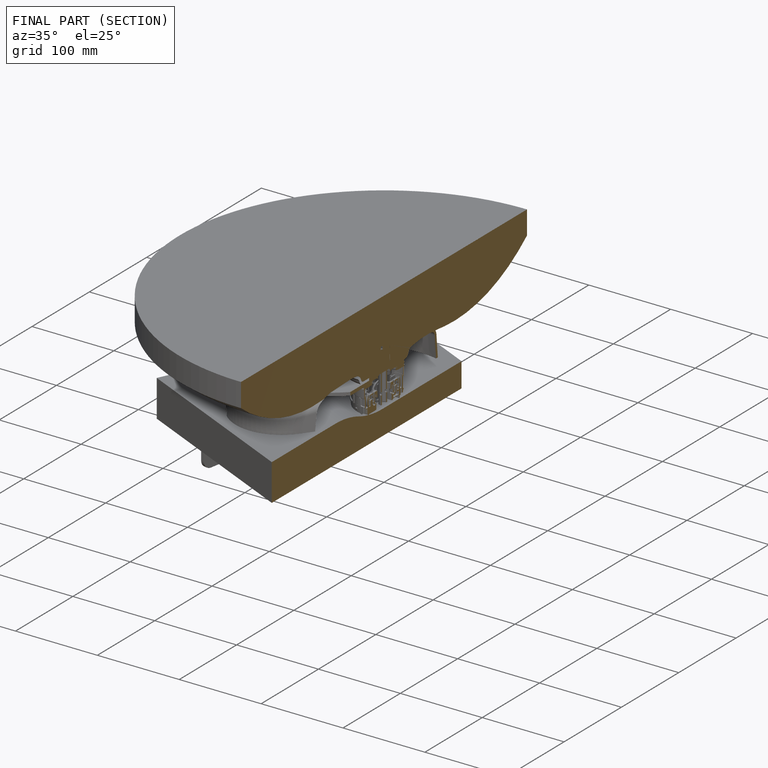
[diagram: finished part — half-section view (interior)]
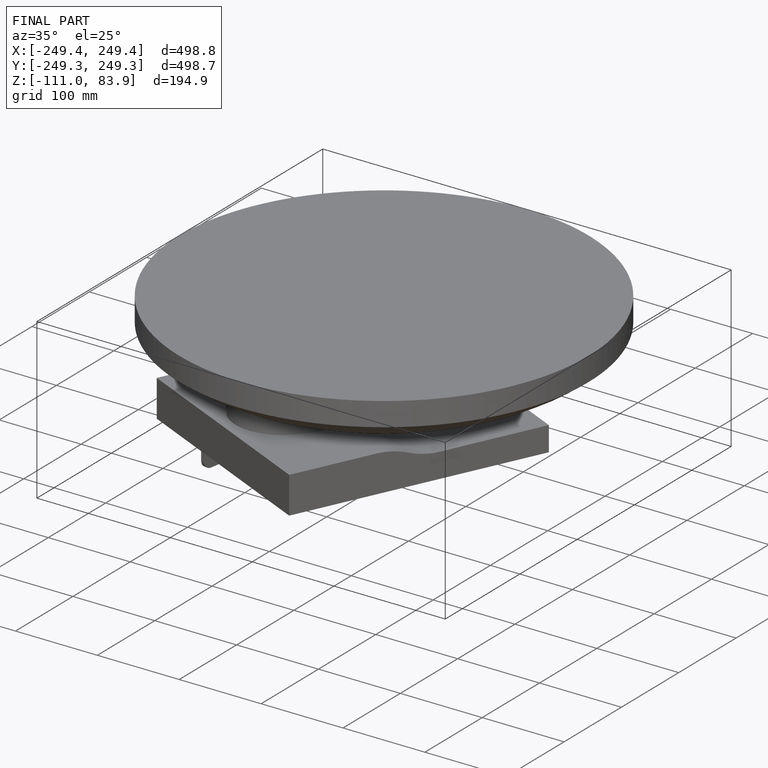
[diagram: finished part — iso view with bounding-box wireframe]
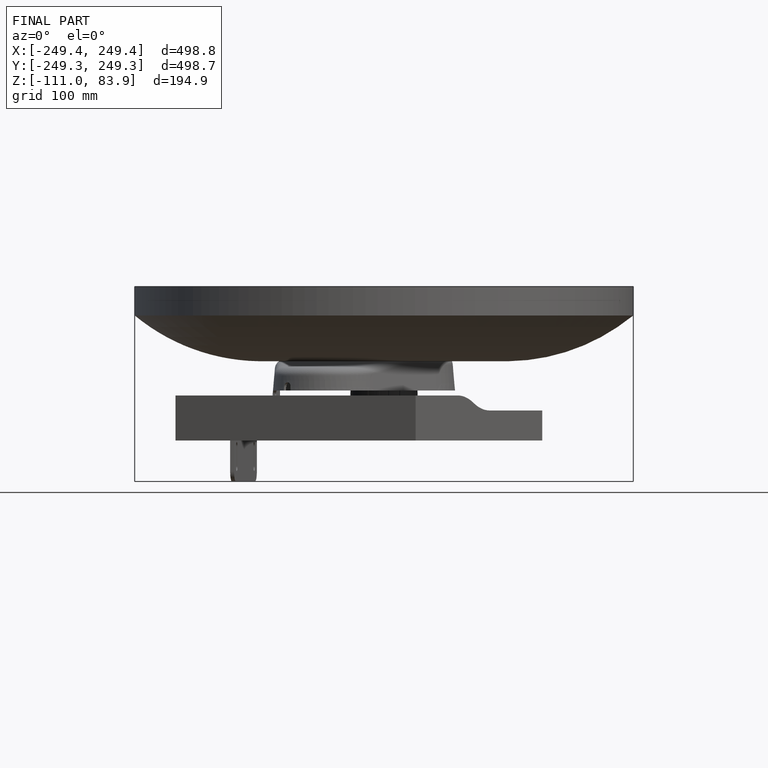
[diagram: finished part — front view with bounding-box wireframe]
